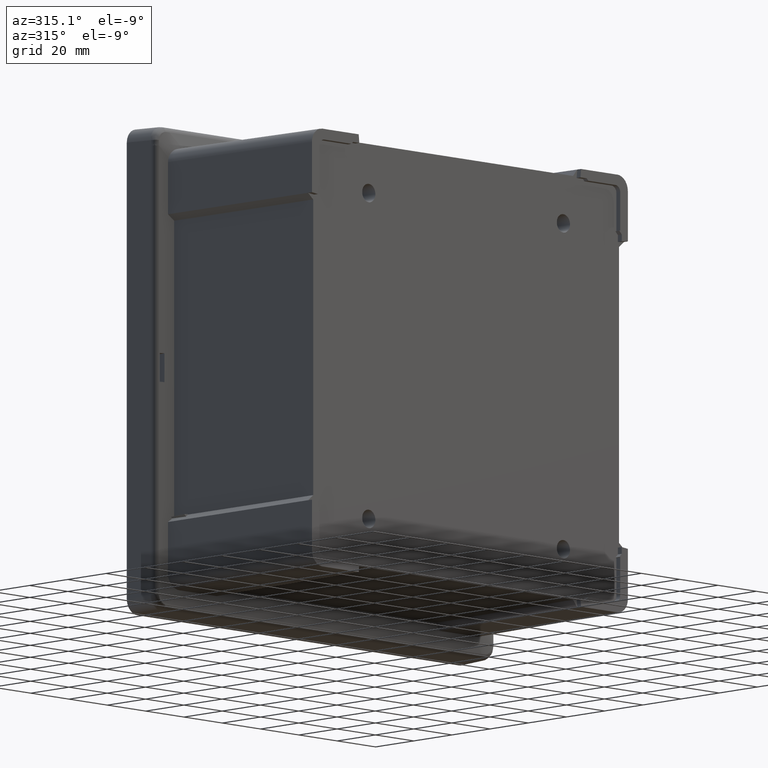
[diagram: clean part render]
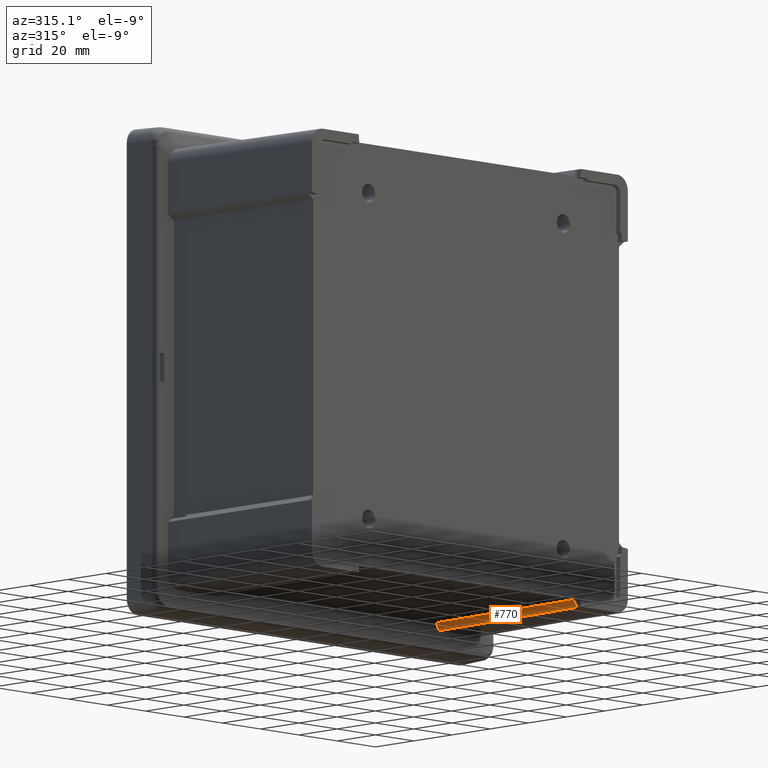
[diagram: same view with one face highlighted and labeled with its STEP entity id]
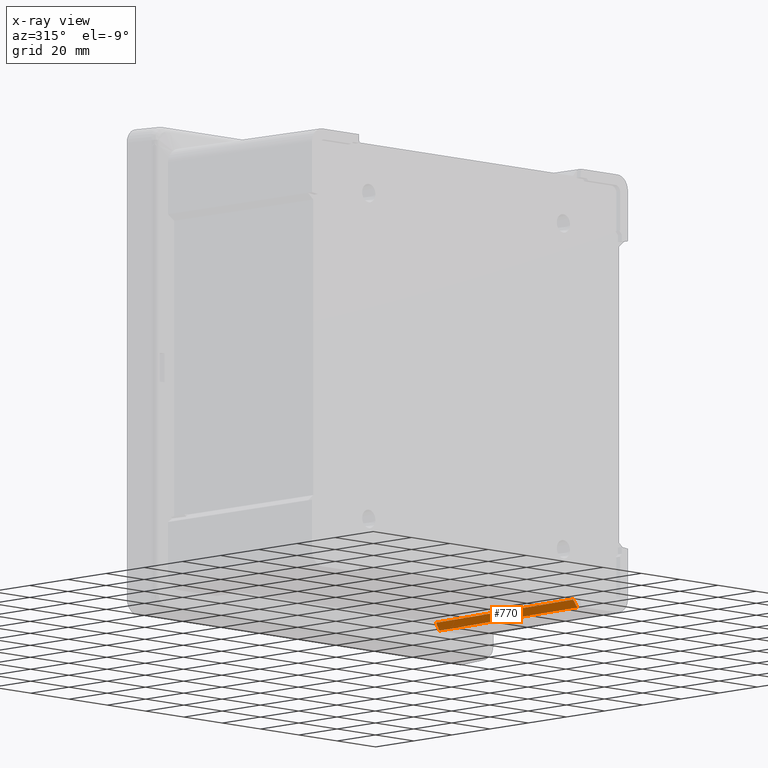
[diagram: x-ray of the same camera — body ghosted, the highlighted face saturated]
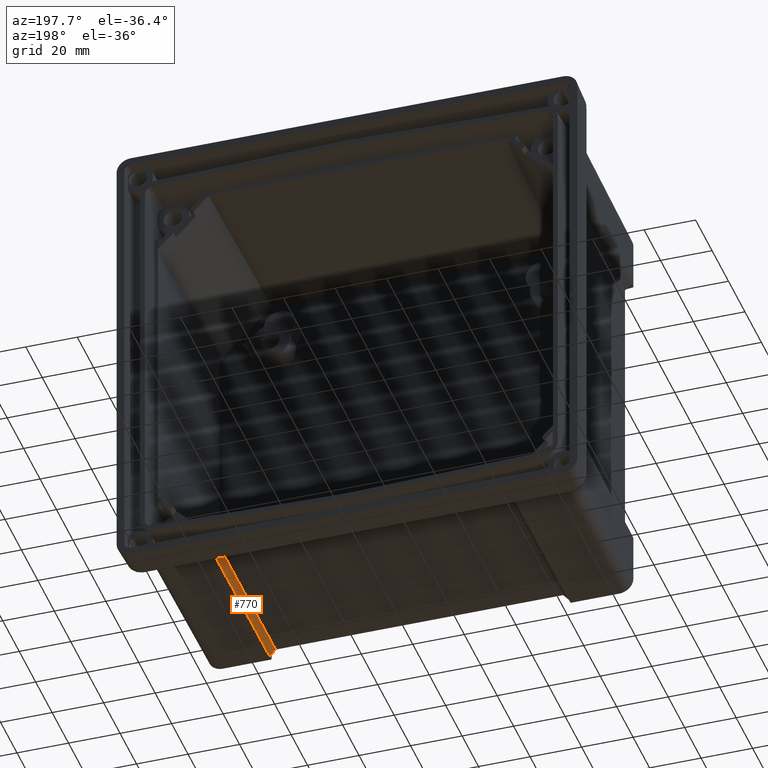
[diagram: same view with one face highlighted and labeled with its STEP entity id]
A machine part, auxiliary view. The second image highlights one B-rep face of the part: STEP entity #770.
The next image is the same camera in x-ray: the body ghosted, the highlighted face saturated — about 0% of this face is hidden behind the body in this view.
A second angle (auxiliary view) of the same face is appended — the face is thin or edge-on in the first view.
In plain terms, the highlighted planar face has unit normal (-0.766, -0.0049, -0.6428).
Its self-contained STEP definition (entity closure, byte-faithful):
#250 = DIRECTION ( 'NONE',  ( -0.6427876096865433600, 0.0000000000000000000, 0.7660444431189747900 ) ) ;
#770 = ADVANCED_FACE ( 'NONE', ( #7464 ), #4422, .T. ) ;
#921 = DIRECTION ( 'NONE',  ( 0.0009171954542836892100, 0.9999615024563482900, -0.008726531827788399500 ) ) ;
#1638 = DIRECTION ( 'NONE',  ( -0.7660352210678347300, -0.004906823884699129300, -0.6427798714668330200 ) ) ;
#1867 = EDGE_CURVE ( 'NONE', #10007, #2524, #9408, .T. ) ;
#2183 = EDGE_CURVE ( 'NONE', #10567, #2524, #9492, .T. ) ;
#2259 = EDGE_LOOP ( 'NONE', ( #7883, #8320, #9201, #13206 ) ) ;
#2300 = CARTESIAN_POINT ( 'NONE',  ( 55.89102044620092600, -16.35844644663060200, -79.93203913540132500 ) ) ;
#2449 = VECTOR ( 'NONE', #921, 999.9999999999998900 ) ;
#2524 = VERTEX_POINT ( 'NONE', #10470 ) ;
#3034 = VECTOR ( 'NONE', #3936, 1000.000000000000000 ) ;
#3043 = CARTESIAN_POINT ( 'NONE',  ( 54.31929834677645600, -10.17882405512635000, -78.10610739851848900 ) ) ;
#3170 = VECTOR ( 'NONE', #7546, 1000.000000000000100 ) ;
#3602 = CARTESIAN_POINT ( 'NONE',  ( 55.82530860919962400, -88.00000000000000000, -79.30683276921627100 ) ) ;
#3702 = LINE ( 'NONE', #2300, #2449 ) ;
#3936 = DIRECTION ( 'NONE',  ( 0.6427876096865433600, 0.0000000000000000000, -0.7660444431189746800 ) ) ;
#4422 = PLANE ( 'NONE',  #8173 ) ;
#5235 = DIRECTION ( 'NONE',  ( -0.0009171954542808955500, -0.9999615024563482900, 0.008726531827785070600 ) ) ;
#5324 = CARTESIAN_POINT ( 'NONE',  ( 54.24791836999925500, -88.00000000000000000, -77.42697228472620500 ) ) ;
#6618 = CARTESIAN_POINT ( 'NONE',  ( 58.11277966572141200, -10.17882405512635000, -82.62700238881011200 ) ) ;
#7464 = FACE_OUTER_BOUND ( 'NONE', #2259, .T. ) ;
#7546 = DIRECTION ( 'NONE',  ( 0.6338166285787368800, 0.1608162295870525800, -0.7565808758080578800 ) ) ;
#7749 = VERTEX_POINT ( 'NONE', #13007 ) ;
#7883 = ORIENTED_EDGE ( 'NONE', *, *, #2183, .F. ) ;
#8173 = AXIS2_PLACEMENT_3D ( 'NONE', #3043, #1638, #250 ) ;
#8320 = ORIENTED_EDGE ( 'NONE', *, *, #11407, .T. ) ;
#8933 = CARTESIAN_POINT ( 'NONE',  ( 55.00065007423308600, -16.45883534752572800, -78.87017070162210100 ) ) ;
#9201 = ORIENTED_EDGE ( 'NONE', *, *, #11430, .T. ) ;
#9271 = LINE ( 'NONE', #8933, #3170 ) ;
#9408 = LINE ( 'NONE', #6618, #12642 ) ;
#9492 = LINE ( 'NONE', #5324, #3034 ) ;
#9592 = CARTESIAN_POINT ( 'NONE',  ( 58.10774254728453800, -15.67048289042008800, -82.57907740820255100 ) ) ;
#10007 = VERTEX_POINT ( 'NONE', #9592 ) ;
#10470 = CARTESIAN_POINT ( 'NONE',  ( 58.04139968894421700, -88.00000000000000000, -81.94786727501784200 ) ) ;
#10567 = VERTEX_POINT ( 'NONE', #3602 ) ;
#11407 = EDGE_CURVE ( 'NONE', #10567, #7749, #3702, .T. ) ;
#11430 = EDGE_CURVE ( 'NONE', #7749, #10007, #9271, .T. ) ;
#12642 = VECTOR ( 'NONE', #5235, 999.9999999999998900 ) ;
#13007 = CARTESIAN_POINT ( 'NONE',  ( 55.89113560552669200, -16.23289535291627000, -79.93313480319714900 ) ) ;
#13206 = ORIENTED_EDGE ( 'NONE', *, *, #1867, .T. ) ;